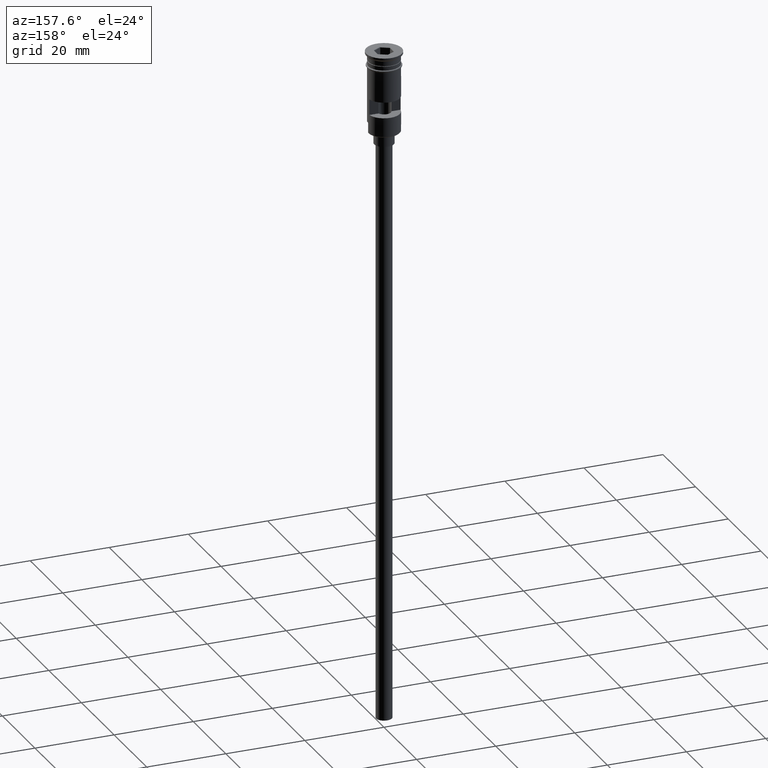
[diagram: clean part render]
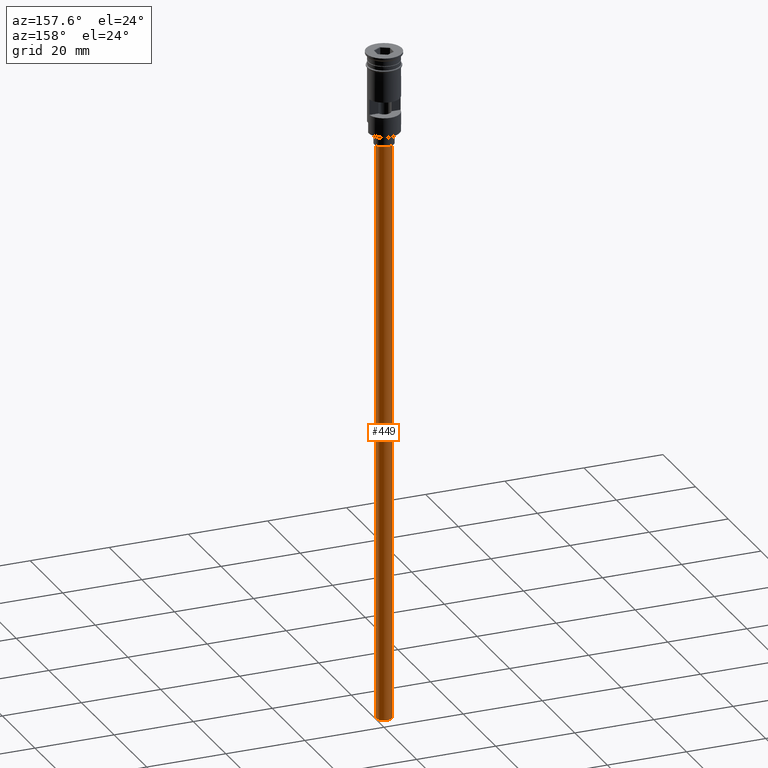
[diagram: same view with one face highlighted and labeled with its STEP entity id]
A machine part, auxiliary view. The second image highlights one B-rep face of the part: STEP entity #449.
In plain terms, the highlighted cylindrical surface (edge-blend (fillet) strip) has radius 2 mm, axis along (-0, -0, 1).
Its self-contained STEP definition (entity closure, byte-faithful):
#7 = LINE ( 'NONE', #757, #531 ) ;
#50 = AXIS2_PLACEMENT_3D ( 'NONE', #1251, #1129, #1256 ) ;
#231 = DIRECTION ( 'NONE',  ( -0.000000000000000000, -0.000000000000000000, 1.000000000000000000 ) ) ;
#283 = CARTESIAN_POINT ( 'NONE',  ( 2.000000000000000000, 0.000000000000000000, -23.49999999999999645 ) ) ;
#304 = VERTEX_POINT ( 'NONE', #530 ) ;
#449 = ADVANCED_FACE ( 'NONE', ( #466 ), #939, .T. ) ;
#466 = FACE_OUTER_BOUND ( 'NONE', #833, .T. ) ;
#530 = CARTESIAN_POINT ( 'NONE',  ( 2.000000000000000000, 0.000000000000000000, -170.4999999999999716 ) ) ;
#531 = VECTOR ( 'NONE', #887, 1000.000000000000000 ) ;
#571 = CARTESIAN_POINT ( 'NONE',  ( 0.000000000000000000, 0.000000000000000000, -170.4999999999999716 ) ) ;
#654 = ORIENTED_EDGE ( 'NONE', *, *, #1050, .T. ) ;
#741 = VECTOR ( 'NONE', #1381, 1000.000000000000000 ) ;
#757 = CARTESIAN_POINT ( 'NONE',  ( -2.000000000000000000, 2.449293598294706414E-16, -170.4999999999999716 ) ) ;
#833 = EDGE_LOOP ( 'NONE', ( #1355, #1199, #654, #984 ) ) ;
#887 = DIRECTION ( 'NONE',  ( -0.000000000000000000, -0.000000000000000000, 1.000000000000000000 ) ) ;
#895 = AXIS2_PLACEMENT_3D ( 'NONE', #571, #231, #1441 ) ;
#939 = CYLINDRICAL_SURFACE ( 'NONE', #895, 2.000000000000000000 ) ;
#965 = VERTEX_POINT ( 'NONE', #1432 ) ;
#967 = DIRECTION ( 'NONE',  ( -1.000000000000000000, 0.000000000000000000, 0.000000000000000000 ) ) ;
#980 = CIRCLE ( 'NONE', #1400, 2.000000000000000000 ) ;
#984 = ORIENTED_EDGE ( 'NONE', *, *, #1489, .F. ) ;
#1050 = EDGE_CURVE ( 'NONE', #1551, #1194, #1217, .T. ) ;
#1051 = DIRECTION ( 'NONE',  ( 0.000000000000000000, 0.000000000000000000, -1.000000000000000000 ) ) ;
#1126 = CARTESIAN_POINT ( 'NONE',  ( -2.000000000000000000, 2.449293598294706414E-16, -23.49999999999999645 ) ) ;
#1129 = DIRECTION ( 'NONE',  ( 0.000000000000000000, 0.000000000000000000, -1.000000000000000000 ) ) ;
#1194 = VERTEX_POINT ( 'NONE', #283 ) ;
#1199 = ORIENTED_EDGE ( 'NONE', *, *, #1444, .T. ) ;
#1217 = CIRCLE ( 'NONE', #50, 2.000000000000000000 ) ;
#1251 = CARTESIAN_POINT ( 'NONE',  ( 0.000000000000000000, 0.000000000000000000, -23.49999999999999645 ) ) ;
#1254 = CARTESIAN_POINT ( 'NONE',  ( 2.000000000000000000, 0.000000000000000000, -170.4999999999999716 ) ) ;
#1256 = DIRECTION ( 'NONE',  ( -1.000000000000000000, 0.000000000000000000, 0.000000000000000000 ) ) ;
#1355 = ORIENTED_EDGE ( 'NONE', *, *, #1366, .F. ) ;
#1366 = EDGE_CURVE ( 'NONE', #965, #304, #980, .T. ) ;
#1381 = DIRECTION ( 'NONE',  ( -0.000000000000000000, -0.000000000000000000, 1.000000000000000000 ) ) ;
#1400 = AXIS2_PLACEMENT_3D ( 'NONE', #1486, #1051, #967 ) ;
#1432 = CARTESIAN_POINT ( 'NONE',  ( -2.000000000000000000, 2.449293598294706414E-16, -170.4999999999999716 ) ) ;
#1441 = DIRECTION ( 'NONE',  ( 1.000000000000000000, 0.000000000000000000, 0.000000000000000000 ) ) ;
#1444 = EDGE_CURVE ( 'NONE', #965, #1551, #7, .T. ) ;
#1486 = CARTESIAN_POINT ( 'NONE',  ( 0.000000000000000000, 0.000000000000000000, -170.4999999999999716 ) ) ;
#1489 = EDGE_CURVE ( 'NONE', #304, #1194, #1496, .T. ) ;
#1496 = LINE ( 'NONE', #1254, #741 ) ;
#1551 = VERTEX_POINT ( 'NONE', #1126 ) ;